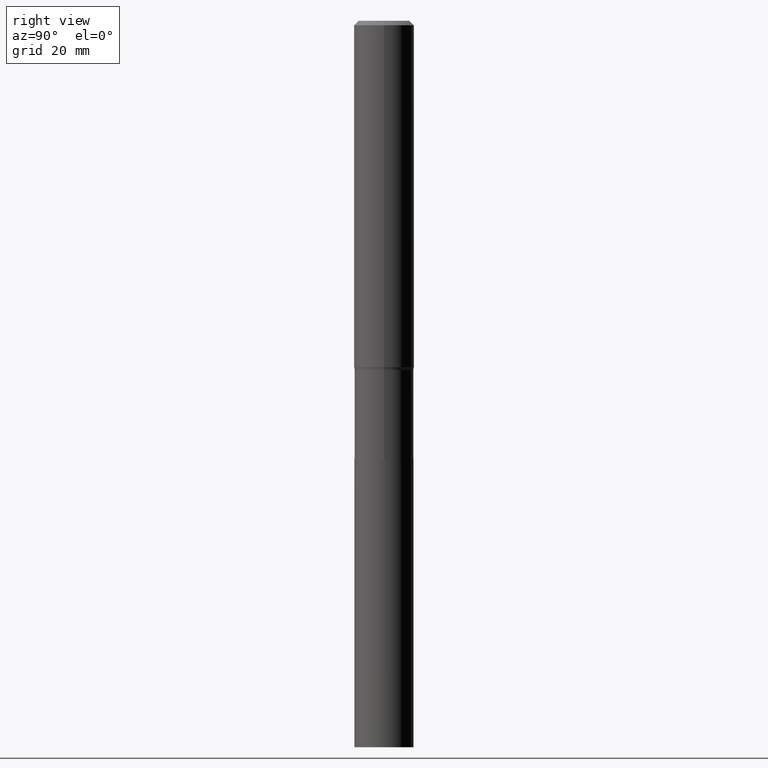
[diagram: clean part render]
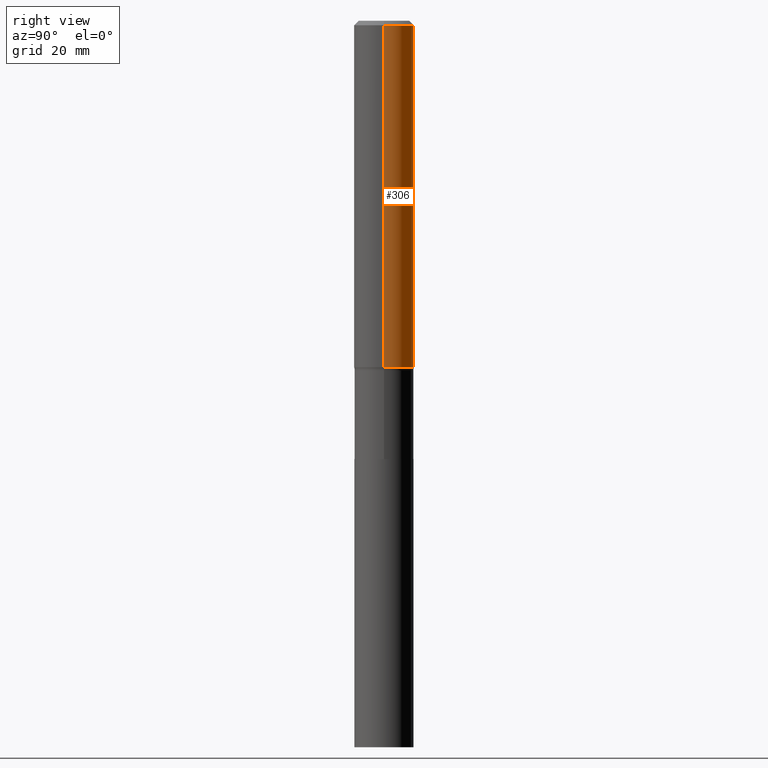
[diagram: same view with one face highlighted and labeled with its STEP entity id]
A machine part, right view. The second image highlights one B-rep face of the part: STEP entity #306.
In plain terms, the highlighted cylindrical surface (edge-blend (fillet) strip) has radius 5.9995 mm, axis along (-0, 0, 1).
Its self-contained STEP definition (entity closure, byte-faithful):
#4 = DIRECTION ( 'NONE',  ( -2.445468806185136877E-29, 3.491481338843145188E-15, 1.000000000000000000 ) ) ;
#8 = EDGE_CURVE ( 'NONE', #22, #366, #183, .T. ) ;
#9 = DIRECTION ( 'NONE',  ( 1.000000000000000000, -6.982962677686266711E-15, 4.876176775795936353E-29 ) ) ;
#10 = DIRECTION ( 'NONE',  ( -2.445468806185136597E-29, 3.491481338843145583E-15, 1.000000000000000000 ) ) ;
#12 = DIRECTION ( 'NONE',  ( -2.445468806185136597E-29, 3.491481338843145583E-15, 1.000000000000000000 ) ) ;
#14 = ORIENTED_EDGE ( 'NONE', *, *, #8, .T. ) ;
#20 = ORIENTED_EDGE ( 'NONE', *, *, #93, .F. ) ;
#22 = VERTEX_POINT ( 'NONE', #78 ) ;
#41 = AXIS2_PLACEMENT_3D ( 'NONE', #191, #12, #132 ) ;
#45 = ORIENTED_EDGE ( 'NONE', *, *, #143, .T. ) ;
#78 = CARTESIAN_POINT ( 'NONE',  ( -0.2362000000000003264, -7.826649636953230202E-15, -2.722326329823066882 ) ) ;
#93 = EDGE_CURVE ( 'NONE', #328, #366, #95, .T. ) ;
#95 = CIRCLE ( 'NONE', #41, 0.2361999999999999933 ) ;
#97 = CARTESIAN_POINT ( 'NONE',  ( 6.657364119838780176E-29, -9.504951578818589752E-15, -2.722326329823066882 ) ) ;
#117 = CIRCLE ( 'NONE', #315, 0.2362000000000003264 ) ;
#123 = DIRECTION ( 'NONE',  ( -2.445468806185136597E-29, 3.491481338843145583E-15, 1.000000000000000000 ) ) ;
#132 = DIRECTION ( 'NONE',  ( 1.000000000000000000, -6.982962677686266711E-15, 0.000000000000000000 ) ) ;
#134 = CYLINDRICAL_SURFACE ( 'NONE', #317, 0.2362000000000001598 ) ;
#143 = EDGE_CURVE ( 'NONE', #268, #22, #117, .T. ) ;
#173 = CARTESIAN_POINT ( 'NONE',  ( 0.2362000000000001598, -1.649375784469497314E-15, 1.151752954443000929E-29 ) ) ;
#183 = LINE ( 'NONE', #433, #454 ) ;
#191 = CARTESIAN_POINT ( 'NONE',  ( 8.664295980313998742E-31, -1.237031838352135065E-16, -0.03543000000000024602 ) ) ;
#194 = CARTESIAN_POINT ( 'NONE',  ( 0.2362000000000003264, -1.115432736328808628E-14, -2.722326329823066882 ) ) ;
#219 = EDGE_LOOP ( 'NONE', ( #45, #14, #20, #223 ) ) ;
#223 = ORIENTED_EDGE ( 'NONE', *, *, #233, .F. ) ;
#233 = EDGE_CURVE ( 'NONE', #268, #328, #351, .T. ) ;
#268 = VERTEX_POINT ( 'NONE', #194 ) ;
#299 = CARTESIAN_POINT ( 'NONE',  ( 0.000000000000000000, 0.000000000000000000, 0.000000000000000000 ) ) ;
#306 = ADVANCED_FACE ( 'NONE', ( #341 ), #134, .T. ) ;
#315 = AXIS2_PLACEMENT_3D ( 'NONE', #97, #10, #404 ) ;
#317 = AXIS2_PLACEMENT_3D ( 'NONE', #299, #123, #9 ) ;
#328 = VERTEX_POINT ( 'NONE', #344 ) ;
#341 = FACE_OUTER_BOUND ( 'NONE', #219, .T. ) ;
#344 = CARTESIAN_POINT ( 'NONE',  ( 0.2361999999999999933, -1.773078968304709711E-15, -0.03543000000000024602 ) ) ;
#351 = LINE ( 'NONE', #173, #383 ) ;
#366 = VERTEX_POINT ( 'NONE', #381 ) ;
#381 = CARTESIAN_POINT ( 'NONE',  ( -0.2361999999999999933, -3.136025439461542314E-15, -0.03543000000000024602 ) ) ;
#383 = VECTOR ( 'NONE', #390, 39.37007874015748143 ) ;
#390 = DIRECTION ( 'NONE',  ( -2.445468806185136877E-29, 3.491481338843145188E-15, 1.000000000000000000 ) ) ;
#404 = DIRECTION ( 'NONE',  ( 1.000000000000000000, -6.982962677686263555E-15, 0.000000000000000000 ) ) ;
#433 = CARTESIAN_POINT ( 'NONE',  ( -0.2362000000000001598, 1.678301941865357775E-15, -1.161852468318209598E-29 ) ) ;
#454 = VECTOR ( 'NONE', #4, 39.37007874015748143 ) ;